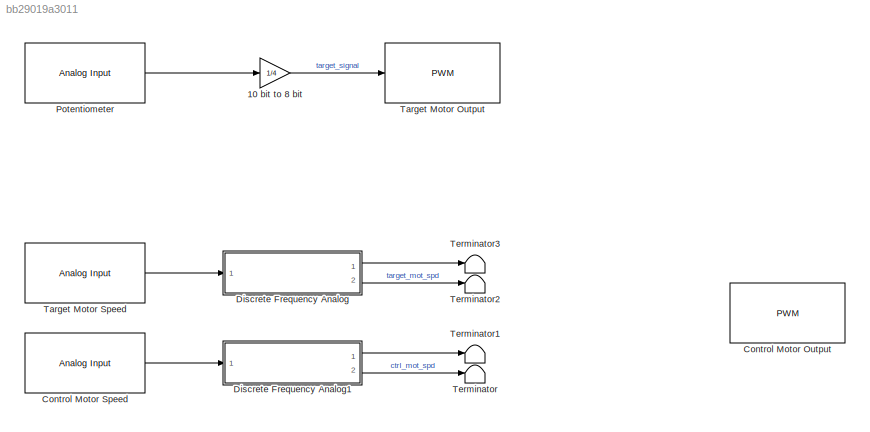
MODEL slx_bb29019a3011
KIND model
CONFIG AbsTol = auto
CONFIG EnableMultiTasking = on
CONFIG FixedStep = auto
CONFIG MaxStep = auto
CONFIG MinStep = auto
CONFIG RelTol = 1e-3
CONFIG SampleTimeConstraint = Unconstrained
CONFIG Solver = FixedStepAuto
CONFIG SolverName = FixedStepAuto
CONFIG StartTime = 0.0
CONFIG StopTime = Inf
BLOCK [Gain] 10 bit to 8 bit
  Gain = 1/4
  OutDataTypeStr = Inherit: Inherit via internal rule
  ParamDataTypeStr = Inherit: Inherit via internal rule
  SaturateOnIntegerOverflow = off
BLOCK [Reference] Control Motor Output  REF=arduinolib/PWM
  Ports = [1]
  SourceBlock = arduinolib/PWM
  SourceProductBaseCode = ARDUINO
  SourceProductName = Simulink Support Package for Arduino Hardware
  SourceType = Arduino PWM
BLOCK [Reference] Control Motor Speed  REF=arduinolib/Analog Input
  Ports = [0, 1]
  SourceBlock = arduinolib/Analog Input
  SourceProductBaseCode = ARDUINO
  SourceProductName = Simulink Support Package for Arduino Hardware
  SourceType = Arduino Analog Input
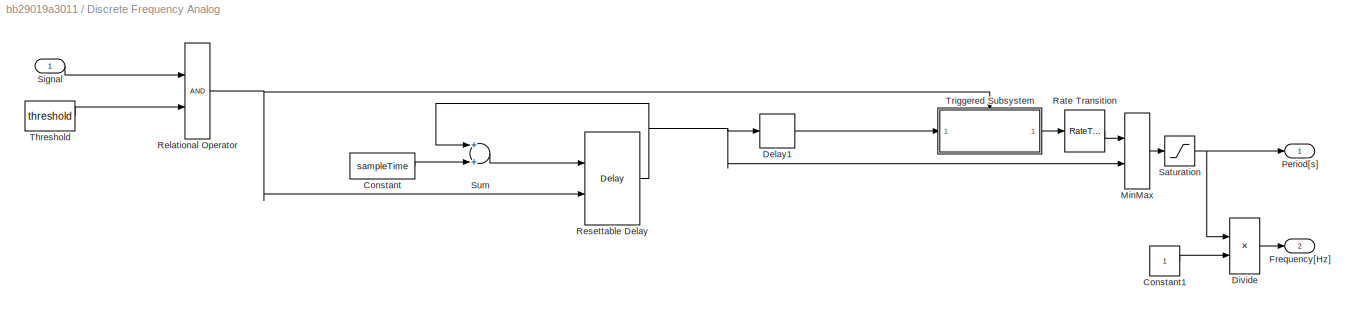
BLOCK [SubSystem] Discrete Frequency Analog
  Ports = [1, 2]
  RequestExecContextInheritance = off
BLOCK [Constant] Discrete Frequency Analog/Constant
  Value = sampleTime
BLOCK [Constant] Discrete Frequency Analog/Constant1
BLOCK [Delay] Discrete Frequency Analog/Delay1
  DelayLength = 1
  InputPortMap = u0
  Ports = [1, 1]
BLOCK [Product] Discrete Frequency Analog/Divide
  InputSameDT = off
  Inputs = /*
  OutDataTypeStr = Inherit: Inherit via internal rule
  Ports = [2, 1]
  RndMeth = Floor
  SaturateOnIntegerOverflow = off
BLOCK [Outport] Discrete Frequency Analog/Frequency[Hz]
  IconDisplay = Port number
  Port = 2
BLOCK [MinMax] Discrete Frequency Analog/MinMax
  Function = max
  InputSameDT = off
  Inputs = 2
  Ports = [2, 1]
  SaturateOnIntegerOverflow = off
BLOCK [Outport] Discrete Frequency Analog/Period[s]
  IconDisplay = Port number
BLOCK [RateTransition] Discrete Frequency Analog/Rate Transition
BLOCK [RelationalOperator] Discrete Frequency Analog/Relational Operator
  InputSameDT = off
  OutDataTypeStr = boolean
  Ports = [2, 1]
  RndMeth = Simplest
BLOCK [Delay] Discrete Frequency Analog/Resettable Delay
  DelayLength = 1
  ExternalReset = Rising
  InitialCondition = 0
  InputPortMap = u0,r5
  Ports = [2, 1]
BLOCK [Saturate] Discrete Frequency Analog/Saturation
  InputPortMap = u0
  LowerLimit = 0.001
  Ports = [1, 1]
  UpperLimit = 100
BLOCK [Inport] Discrete Frequency Analog/Signal
  IconDisplay = Port number
BLOCK [Sum] Discrete Frequency Analog/Sum
  InputSameDT = off
  OutDataTypeStr = Inherit: Inherit via internal rule
  Ports = [2, 1]
  SaturateOnIntegerOverflow = off
BLOCK [Constant] Discrete Frequency Analog/Threshold
  Value = threshold
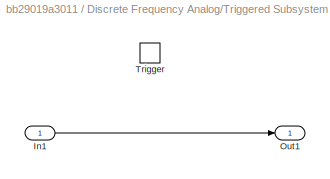
BLOCK [SubSystem] Discrete Frequency Analog/Triggered Subsystem
  Ports = [1, 1, 0, 1]
  RequestExecContextInheritance = off
  TreatAsAtomicUnit = on
BLOCK [Inport] Discrete Frequency Analog/Triggered Subsystem/In1
  IconDisplay = Port number
BLOCK [Outport] Discrete Frequency Analog/Triggered Subsystem/Out1
  IconDisplay = Port number
BLOCK [TriggerPort] Discrete Frequency Analog/Triggered Subsystem/Trigger
  Ports = []
  StatesWhenEnabling = held
  VariantControl = Variant
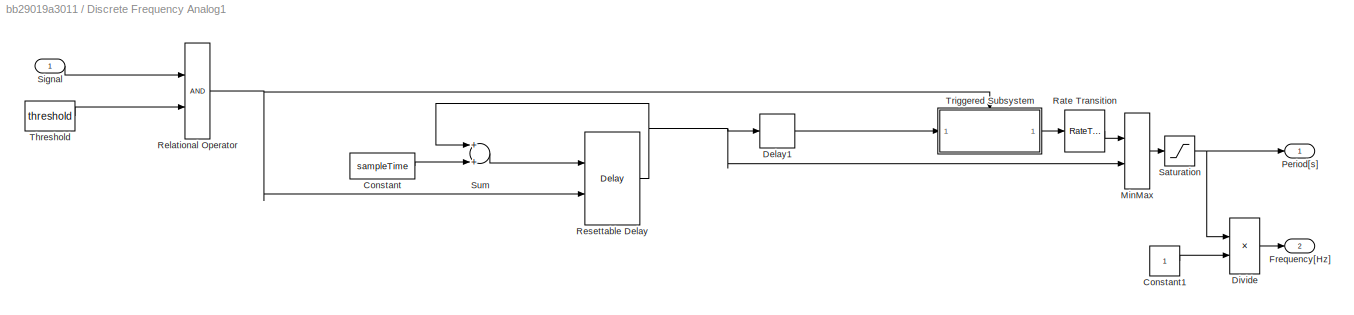
BLOCK [SubSystem] Discrete Frequency Analog1
  Ports = [1, 2]
  RequestExecContextInheritance = off
BLOCK [Constant] Discrete Frequency Analog1/Constant
  Value = sampleTime
BLOCK [Constant] Discrete Frequency Analog1/Constant1
BLOCK [Delay] Discrete Frequency Analog1/Delay1
  DelayLength = 1
  InputPortMap = u0
  Ports = [1, 1]
BLOCK [Product] Discrete Frequency Analog1/Divide
  InputSameDT = off
  Inputs = /*
  OutDataTypeStr = Inherit: Inherit via internal rule
  Ports = [2, 1]
  RndMeth = Floor
  SaturateOnIntegerOverflow = off
BLOCK [Outport] Discrete Frequency Analog1/Frequency[Hz]
  IconDisplay = Port number
  Port = 2
BLOCK [MinMax] Discrete Frequency Analog1/MinMax
  Function = max
  InputSameDT = off
  Inputs = 2
  Ports = [2, 1]
  SaturateOnIntegerOverflow = off
BLOCK [Outport] Discrete Frequency Analog1/Period[s]
  IconDisplay = Port number
BLOCK [RateTransition] Discrete Frequency Analog1/Rate Transition
BLOCK [RelationalOperator] Discrete Frequency Analog1/Relational Operator
  InputSameDT = off
  OutDataTypeStr = boolean
  Ports = [2, 1]
  RndMeth = Simplest
BLOCK [Delay] Discrete Frequency Analog1/Resettable Delay
  DelayLength = 1
  ExternalReset = Rising
  InitialCondition = 0
  InputPortMap = u0,r5
  Ports = [2, 1]
BLOCK [Saturate] Discrete Frequency Analog1/Saturation
  InputPortMap = u0
  LowerLimit = 0.001
  Ports = [1, 1]
  UpperLimit = 100
BLOCK [Inport] Discrete Frequency Analog1/Signal
  IconDisplay = Port number
BLOCK [Sum] Discrete Frequency Analog1/Sum
  InputSameDT = off
  OutDataTypeStr = Inherit: Inherit via internal rule
  Ports = [2, 1]
  SaturateOnIntegerOverflow = off
BLOCK [Constant] Discrete Frequency Analog1/Threshold
  Value = threshold
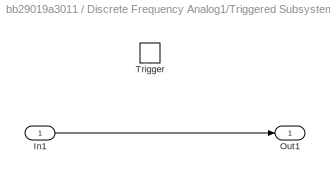
BLOCK [SubSystem] Discrete Frequency Analog1/Triggered Subsystem
  Ports = [1, 1, 0, 1]
  RequestExecContextInheritance = off
  TreatAsAtomicUnit = on
BLOCK [Inport] Discrete Frequency Analog1/Triggered Subsystem/In1
  IconDisplay = Port number
BLOCK [Outport] Discrete Frequency Analog1/Triggered Subsystem/Out1
  IconDisplay = Port number
BLOCK [TriggerPort] Discrete Frequency Analog1/Triggered Subsystem/Trigger
  Ports = []
  StatesWhenEnabling = held
  VariantControl = Variant
BLOCK [Reference] Potentiometer  REF=arduinolib/Analog Input
  Ports = [0, 1]
  SourceBlock = arduinolib/Analog Input
  SourceProductBaseCode = ARDUINO
  SourceProductName = Simulink Support Package for Arduino Hardware
  SourceType = Arduino Analog Input
BLOCK [Reference] Target Motor Output  REF=arduinolib/PWM
  Ports = [1]
  SourceBlock = arduinolib/PWM
  SourceProductBaseCode = ARDUINO
  SourceProductName = Simulink Support Package for Arduino Hardware
  SourceType = Arduino PWM
BLOCK [Reference] Target Motor Speed  REF=arduinolib/Analog Input
  Ports = [0, 1]
  SourceBlock = arduinolib/Analog Input
  SourceProductBaseCode = ARDUINO
  SourceProductName = Simulink Support Package for Arduino Hardware
  SourceType = Arduino Analog Input
BLOCK [Terminator] Terminator
BLOCK [Terminator] Terminator1
BLOCK [Terminator] Terminator2
BLOCK [Terminator] Terminator3
LINE 10 bit to 8 bit:1 -> Target Motor Output:1
LINE Control Motor Speed:1 -> Discrete Frequency Analog1:1
LINE Discrete Frequency Analog/Constant1:1 -> Discrete Frequency Analog/Divide:2
LINE Discrete Frequency Analog/Constant:1 -> Discrete Frequency Analog/Sum:2
LINE Discrete Frequency Analog/Delay1:1 -> Discrete Frequency Analog/Triggered Subsystem:1
LINE Discrete Frequency Analog/Divide:1 -> Discrete Frequency Analog/Frequency[Hz]:1
LINE Discrete Frequency Analog/MinMax:1 -> Discrete Frequency Analog/Saturation:1
LINE Discrete Frequency Analog/Rate Transition:1 -> Discrete Frequency Analog/MinMax:1
NET Discrete Frequency Analog/Relational Operator:1 -> Discrete Frequency Analog/Resettable Delay:2, Discrete Frequency Analog/Triggered Subsystem:trigger
NET Discrete Frequency Analog/Resettable Delay:1 -> Discrete Frequency Analog/Delay1:1, Discrete Frequency Analog/MinMax:2, Discrete Frequency Analog/Sum:1
NET Discrete Frequency Analog/Saturation:1 -> Discrete Frequency Analog/Divide:1, Discrete Frequency Analog/Period[s]:1
LINE Discrete Frequency Analog/Signal:1 -> Discrete Frequency Analog/Relational Operator:1
LINE Discrete Frequency Analog/Sum:1 -> Discrete Frequency Analog/Resettable Delay:1
LINE Discrete Frequency Analog/Threshold:1 -> Discrete Frequency Analog/Relational Operator:2
LINE Discrete Frequency Analog/Triggered Subsystem/In1:1 -> Discrete Frequency Analog/Triggered Subsystem/Out1:1
LINE Discrete Frequency Analog/Triggered Subsystem:1 -> Discrete Frequency Analog/Rate Transition:1
LINE Discrete Frequency Analog1/Constant1:1 -> Discrete Frequency Analog1/Divide:2
LINE Discrete Frequency Analog1/Constant:1 -> Discrete Frequency Analog1/Sum:2
LINE Discrete Frequency Analog1/Delay1:1 -> Discrete Frequency Analog1/Triggered Subsystem:1
LINE Discrete Frequency Analog1/Divide:1 -> Discrete Frequency Analog1/Frequency[Hz]:1
LINE Discrete Frequency Analog1/MinMax:1 -> Discrete Frequency Analog1/Saturation:1
LINE Discrete Frequency Analog1/Rate Transition:1 -> Discrete Frequency Analog1/MinMax:1
NET Discrete Frequency Analog1/Relational Operator:1 -> Discrete Frequency Analog1/Resettable Delay:2, Discrete Frequency Analog1/Triggered Subsystem:trigger
NET Discrete Frequency Analog1/Resettable Delay:1 -> Discrete Frequency Analog1/Delay1:1, Discrete Frequency Analog1/MinMax:2, Discrete Frequency Analog1/Sum:1
NET Discrete Frequency Analog1/Saturation:1 -> Discrete Frequency Analog1/Divide:1, Discrete Frequency Analog1/Period[s]:1
LINE Discrete Frequency Analog1/Signal:1 -> Discrete Frequency Analog1/Relational Operator:1
LINE Discrete Frequency Analog1/Sum:1 -> Discrete Frequency Analog1/Resettable Delay:1
LINE Discrete Frequency Analog1/Threshold:1 -> Discrete Frequency Analog1/Relational Operator:2
LINE Discrete Frequency Analog1/Triggered Subsystem/In1:1 -> Discrete Frequency Analog1/Triggered Subsystem/Out1:1
LINE Discrete Frequency Analog1/Triggered Subsystem:1 -> Discrete Frequency Analog1/Rate Transition:1
LINE Discrete Frequency Analog1:1 -> Terminator1:1
LINE Discrete Frequency Analog1:2 -> Terminator:1
LINE Discrete Frequency Analog:1 -> Terminator3:1
LINE Discrete Frequency Analog:2 -> Terminator2:1
LINE Potentiometer:1 -> 10 bit to 8 bit:1
LINE Target Motor Speed:1 -> Discrete Frequency Analog:1
note: NET lines group one-source signal fan-out (src -> all destinations, sorted); 1:1 wires keep LINE
